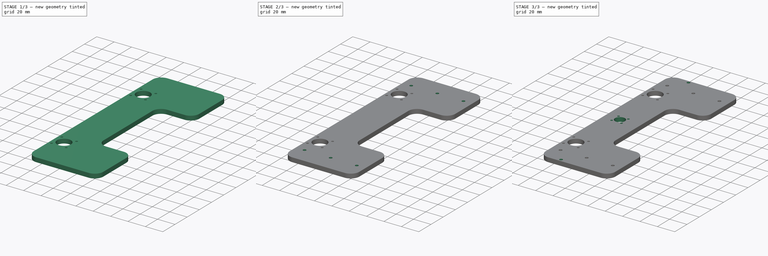
[diagram: build sequence overview — one tinted view per stage of 3, left to right]
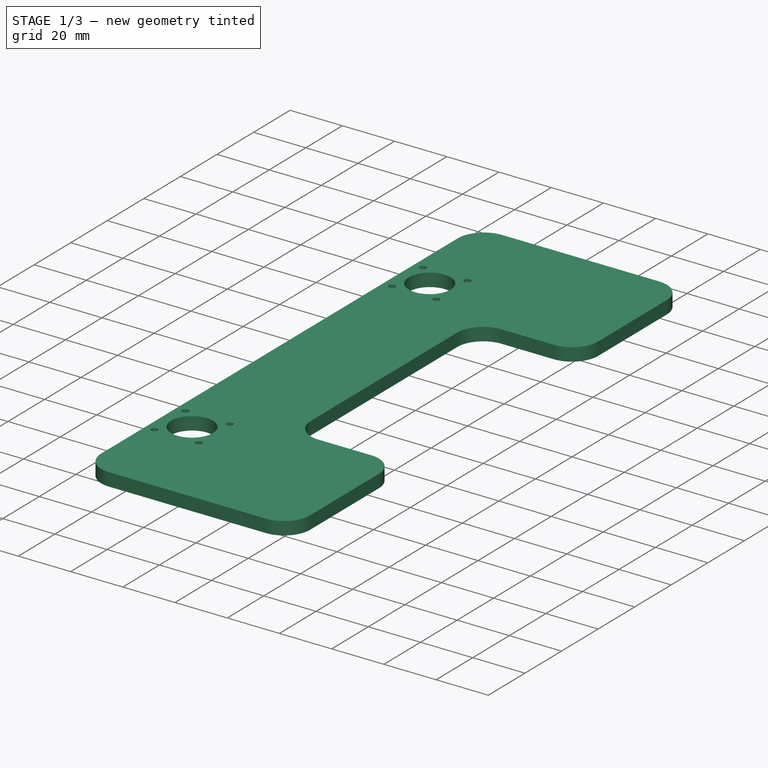
[diagram: stage 1 of 3 — iso view after this stage's code; geometry added in this stage tinted green]
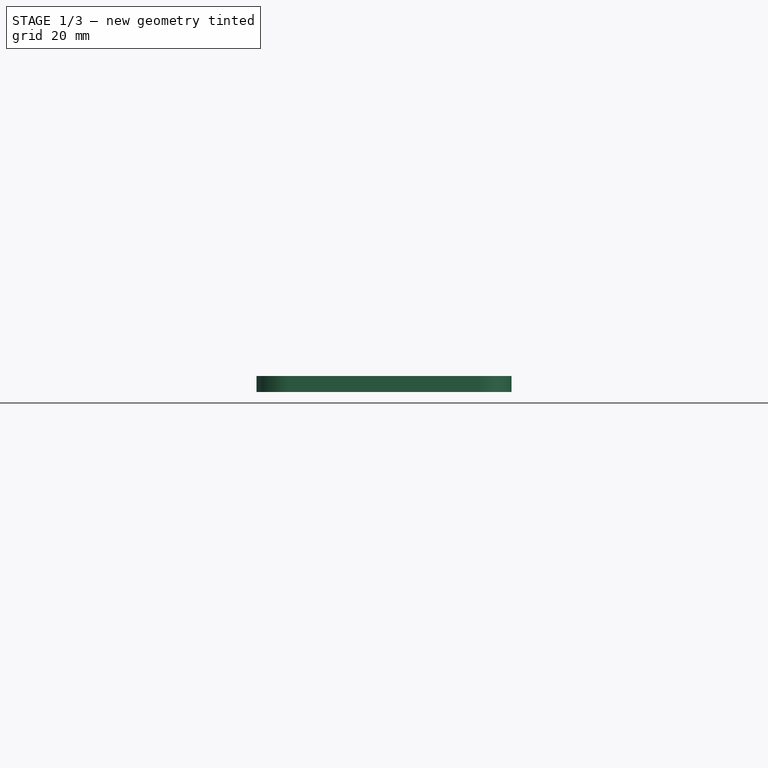
[diagram: stage 1 of 3 — front view after this stage's code; geometry added in this stage tinted green]
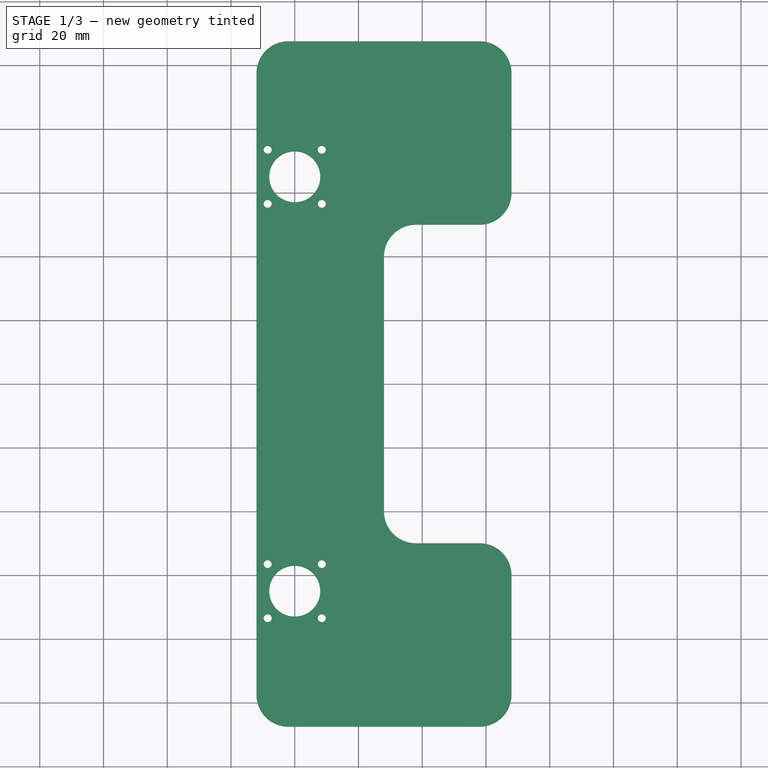
[diagram: stage 1 of 3 — top view after this stage's code; geometry added in this stage tinted green]
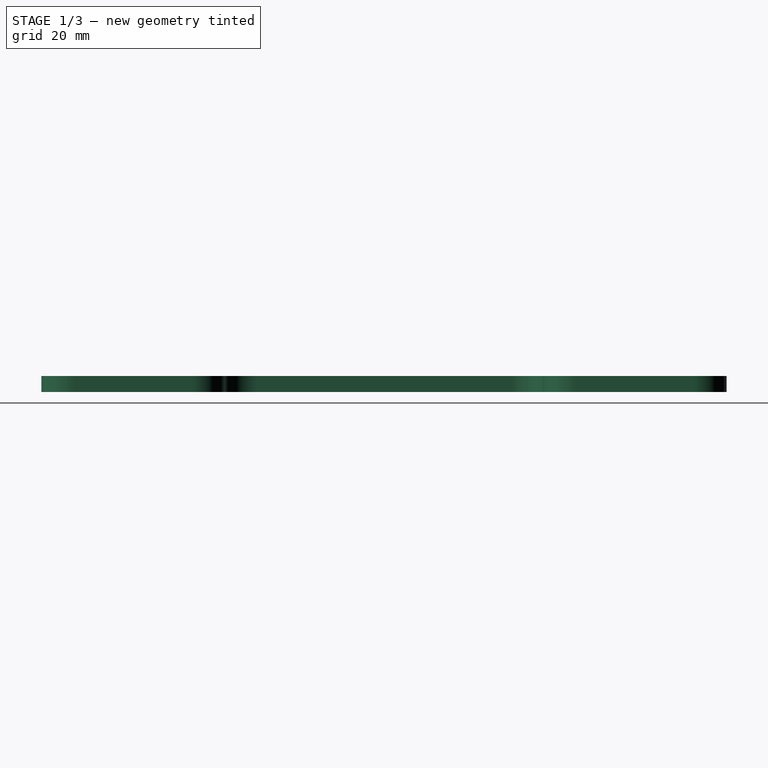
[diagram: stage 1 of 3 — right view after this stage's code; geometry added in this stage tinted green]
FCSTD DOCUMENT  (FreeCAD 0.18R16117 (Git))
Label: ZSupport
License: All rights reserved
LicenseURL: http://en.wikipedia.org/wiki/All_rights_reserved
objects: Sketcher::SketchObject×6, PartDesign::Pocket×4, PartDesign::Mirrored×3, PartDesign::ShapeBinder×1, PartDesign::Pad×1, PartDesign::Body×1
note: 21 computed .brp shape members not serialized (recipe doc carries the construction recipe); baked Part::Feature solids carry a one-line shape summary decoded from their .brp

FEATURE [Sketcher::SketchObject] Sketch  label="Dimensions"
  sketch-geometry (18):
    g0: LineSegment StartX=-25 StartY=-160 StartZ=0 EndX=295 EndY=-160 EndZ=0
    g1: LineSegment StartX=295 StartY=-160 StartZ=0 EndX=295 EndY=160 EndZ=0
    g2: LineSegment StartX=295 StartY=160 StartZ=0 EndX=-25 EndY=160 EndZ=0
    g3: LineSegment StartX=-25 StartY=160 StartZ=0 EndX=-25 EndY=-160 EndZ=0
    g4: LineSegment StartX=-25 StartY=0 StartZ=0 EndX=295 EndY=0 EndZ=0
    g5: LineSegment StartX=5 StartY=-160 StartZ=0 EndX=5 EndY=-130 EndZ=0
    g6: LineSegment StartX=5 StartY=-130 StartZ=0 EndX=-25 EndY=-130 EndZ=0
    g7: LineSegment StartX=5 StartY=160 StartZ=0 EndX=5 EndY=130 EndZ=0
    g8: LineSegment StartX=5 StartY=130 StartZ=0 EndX=-25 EndY=130 EndZ=0
    g9: ArcOfCircle CenterX=5 CenterY=130 CenterZ=0 NormalX=0 NormalY=0 NormalZ=1 AngleXU=0 Radius=30 StartAngle=1.5708 EndAngle=3.14159
    g10: ArcOfCircle CenterX=5 CenterY=-130 CenterZ=0 NormalX=0 NormalY=0 NormalZ=1 AngleXU=0 Radius=30 StartAngle=3.14159 EndAngle=4.71239
    g11: LineSegment StartX=-20 StartY=130 StartZ=0 EndX=-20 EndY=-130 EndZ=0
    g12: LineSegment StartX=0 StartY=130 StartZ=0 EndX=0 EndY=-130 EndZ=0
    g13: LineSegment StartX=135 StartY=160 StartZ=0 EndX=135 EndY=-160 EndZ=0
    g14: LineSegment StartX=28 StartY=107 StartZ=0 EndX=242 EndY=107 EndZ=0
    g15: LineSegment StartX=242 StartY=107 StartZ=0 EndX=242 EndY=-107 EndZ=0
    g16: LineSegment StartX=242 StartY=-107 StartZ=0 EndX=28 EndY=-107 EndZ=0
    g17: LineSegment StartX=28 StartY=-107 StartZ=0 EndX=28 EndY=107 EndZ=0
  constraints (54):
    c: Horizontal(g0)
    c: Coincident(g0,g1)
    c: Vertical(g1)
    c: Coincident(g1,g2)
    c: Horizontal(g2)
    c: Coincident(g2,g3)
    c: Coincident(g3,g0)
    c: Vertical(g3)
    c: DistanceY(g3,g3) = 320
    c: Distance(g0) = 320
    c: PointOnObject(g4,g1)
    c: Horizontal(g4)
    c: Symmetric(g2,g0,g4)
    c: Coincident(g5,g6)
    c: Horizontal(g6)
    c: Vertical(g5)
    c: Distance(g5) = 30
    c: Coincident(g7,g8)
    c: Horizontal(g8)
    c: Vertical(g7)
    c: Distance(g7) = 30
    c: PointOnObject(g7,g2)
    c: PointOnObject(g8,g3)
    c: PointOnObject(g6,g3)
    c: PointOnObject(g5,g0)
    c: Coincident(g9,g7)
    c: Coincident(g9,g8)
    c: Coincident(g9,g7)
    c: Coincident(g10,g5)
    c: Coincident(g10,g6)
    c: Coincident(g10,g5)
    c: PointOnObject(g11,g8)
    c: PointOnObject(g11,g6)
    c: Vertical(g11)
    c: DistanceX(g6,g11) = 5
    c: PointOnObject(g12,g8)
    c: PointOnObject(g12,g6)
    c: Vertical(g12)
    c: PointOnObject(g13,g2)
    c: Vertical(g13)
    c: Symmetric(g0,g0,g13)
    c: DistanceX(g11,g12) = 20
    c: Coincident(g14,g15)
    c: Coincident(g15,g16)
    c: Coincident(g16,g17)
    c: Coincident(g17,g14)
    c: Horizontal(g14)
    c: Vertical(g15)
    c: DistanceX(g14,g14) = 214
    c: DistanceY(g15,g15) = 214
    c: Symmetric(g16,g15,g13)
    c: Symmetric(g14,g16,g4)
    c: PointOnObject(g4,g-1)
    c: PointOnObject(g12,g-2)
FEATURE [PartDesign::ShapeBinder] ShapeBinder
  Support = -> [Sketch]
  TraceSupport = false
FEATURE [Sketcher::SketchObject] Sketch001  label="ZSupportSketch"
  ExternalGeometry = -> [ShapeBinder]
  MapMode = 5
  Support = -> [XY_Plane]
  sketch-geometry (16):
    g0: LineSegment StartX=88 StartY=-97.5 StartZ=0 EndX=88 EndY=-60 EndZ=0
    g1: ArcOfCircle CenterX=58 CenterY=-40 CenterZ=0 NormalX=0 NormalY=0 NormalZ=1 AngleXU=0 Radius=10 StartAngle=3.14159 EndAngle=4.71239
    g2: LineSegment StartX=48 StartY=-40 StartZ=0 EndX=48 EndY=40 EndZ=0
    g3: LineSegment StartX=88 StartY=97.5 StartZ=0 EndX=88 EndY=60 EndZ=0
    g4: ArcOfCircle CenterX=58 CenterY=40 CenterZ=0 NormalX=0 NormalY=0 NormalZ=1 AngleXU=0 Radius=10 StartAngle=1.5708 EndAngle=3.14159
    g5: ArcOfCircle CenterX=18 CenterY=-97.5 CenterZ=0 NormalX=0 NormalY=0 NormalZ=1 AngleXU=0 Radius=10 StartAngle=3.14159 EndAngle=4.71239
    g6: ArcOfCircle CenterX=18 CenterY=97.5 CenterZ=0 NormalX=0 NormalY=0 NormalZ=1 AngleXU=0 Radius=10 StartAngle=1.5708 EndAngle=3.14159
    g7: LineSegment StartX=8 StartY=97.5 StartZ=0 EndX=8 EndY=-97.5 EndZ=0
    g8: LineSegment StartX=18 StartY=-107.5 StartZ=0 EndX=78 EndY=-107.5 EndZ=0
    g9: ArcOfCircle CenterX=78 CenterY=-97.5 CenterZ=0 NormalX=0 NormalY=0 NormalZ=1 AngleXU=0 Radius=10 StartAngle=4.71239 EndAngle=6.28319
    g10: LineSegment StartX=18 StartY=107.5 StartZ=0 EndX=78 EndY=107.5 EndZ=0
    g11: ArcOfCircle CenterX=78 CenterY=97.5 CenterZ=0 NormalX=0 NormalY=0 NormalZ=1 AngleXU=0 Radius=10 StartAngle=3e-16 EndAngle=1.5708
    g12: LineSegment StartX=58 StartY=-50 StartZ=0 EndX=78 EndY=-50 EndZ=0
    g13: ArcOfCircle CenterX=78 CenterY=-60 CenterZ=0 NormalX=0 NormalY=0 NormalZ=1 AngleXU=0 Radius=10 StartAngle=0 EndAngle=1.5708
    g14: ArcOfCircle CenterX=78 CenterY=60 CenterZ=0 NormalX=0 NormalY=0 NormalZ=1 AngleXU=0 Radius=10 StartAngle=4.71239 EndAngle=6.28319
    g15: LineSegment StartX=58 StartY=50 StartZ=0 EndX=78 EndY=50 EndZ=0
  constraints (38):
    c: Tangent(g1,g2) = 1.5708
    c: Vertical(g0)
    c: Symmetric(g1,g2,g-3)
    c: Symmetric(g3,g0,g-3)
    c: Symmetric(g3,g0,g-3)
    c: Radius(g1) = 10
    c: Radius(g4) = 10
    c: Coincident(g7,g6)
    c: Vertical(g7)
    c: Tangent(g6,g7,g6) = -1.5708
    c: Tangent(g7,g5) = -1.5708
    c: DistanceX(g5,g0) = 80
    c: DistanceX(g-4,g5) = 3
    c: Radius(g5) = 10
    c: Tangent(g5,g8) = -1.5708
    c: Tangent(g8,g9) = -1.5708
    c: Radius(g9) = 10
    c: Tangent(g9,g0) = -1.5708
    c: Horizontal(g8)
    c: Tangent(g6,g10) = 1.5708
    c: Tangent(g10,g11) = 1.5708
    c: Horizontal(g10)
    c: Tangent(g11,g3) = 1.5708
    c: Radius(g11) = 10
    c: DistanceY(g5,g6) = 215
    c: Radius(g6) = 10
    c: DistanceX(g6,g2) = 40
    c: DistanceY(g1,g-3) = 50
    c: Horizontal(g12)
    c: Tangent(g13,g12) = 1.5708
    c: Tangent(g13,g0) = -1.5708
    c: Radius(g13) = 10
    c: Tangent(g12,g1) = -1.5708
    c: Tangent(g14,g3) = 1.5708
    c: Tangent(g4,g2) = 1.5708
    c: Tangent(g15,g4) = 1.5708
    c: Tangent(g15,g14) = -1.5708
    c: Radius(g14) = 10
FEATURE [PartDesign::Pad] Pad  label="ZSupportPad"
  Length = 5
  Length2 = 100
  Profile = -> Sketch001
  Type = 0
FEATURE [Sketcher::SketchObject] Sketch002  label="ZSupportFlangeMount"
  ExternalGeometry = -> [ShapeBinder]
  MapMode = 5
  Support = -> [XY_Plane]
  sketch-geometry (13):
    g0: Circle CenterX=20 CenterY=-65 CenterZ=0 NormalX=0 NormalY=0 NormalZ=1 AngleXU=0 Radius=8
    g1: Circle [constr] CenterX=20 CenterY=-65 CenterZ=0 NormalX=0 NormalY=0 NormalZ=1 AngleXU=0 Radius=12
    g2: Circle CenterX=11.5147 CenterY=-56.5147 CenterZ=0 NormalX=0 NormalY=0 NormalZ=1 AngleXU=0 Radius=1.25
    g3: Circle CenterX=11.5147 CenterY=-73.4853 CenterZ=0 NormalX=0 NormalY=0 NormalZ=1 AngleXU=0 Radius=1.25
    g4: Circle CenterX=28.4853 CenterY=-73.4853 CenterZ=0 NormalX=0 NormalY=0 NormalZ=1 AngleXU=0 Radius=1.25
    g5: Circle CenterX=28.4853 CenterY=-56.5147 CenterZ=0 NormalX=0 NormalY=0 NormalZ=1 AngleXU=0 Radius=1.25
    g6: LineSegment [constr] StartX=7.5 StartY=-52.5 StartZ=0 EndX=32.5 EndY=-52.5 EndZ=0
    g7: LineSegment [constr] StartX=32.5 StartY=-52.5 StartZ=0 EndX=32.5 EndY=-77.5 EndZ=0
    g8: LineSegment [constr] StartX=32.5 StartY=-77.5 StartZ=0 EndX=7.5 EndY=-77.5 EndZ=0
    g9: LineSegment [constr] StartX=7.5 StartY=-77.5 StartZ=0 EndX=7.5 EndY=-52.5 EndZ=0
    g10: LineSegment [constr] StartX=7.5 StartY=-52.5 StartZ=0 EndX=32.5 EndY=-77.5 EndZ=0
    g11: LineSegment [constr] StartX=32.5 StartY=-52.5 StartZ=0 EndX=7.5 EndY=-77.5 EndZ=0
    g12: LineSegment [constr] StartX=-25 StartY=0 StartZ=0 EndX=295 EndY=0 EndZ=0
  constraints (35):
    c: DistanceX(g-4,g0) = 20
    c: Diameter(g0) = 16
    c: Coincident(g1,g0)
    c: Diameter(g1) = 24
    c: Diameter(g5) = 2.5
    c: Equal(g5,g4)
    c: Equal(g5,g2)
    c: Equal(g5,g3)
    c: Horizontal(g2,g5)
    c: Coincident(g6,g7)
    c: Coincident(g7,g8)
    c: Coincident(g8,g9)
    c: Coincident(g9,g6)
    c: Horizontal(g6)
    c: Horizontal(g8)
    c: Vertical(g7)
    c: Vertical(g9)
    c: Coincident(g10,g6)
    c: Coincident(g10,g7)
    c: Coincident(g11,g6)
    c: Coincident(g11,g8)
    c: DistanceX(g6,g6) = 25
    c: DistanceY(g7,g7) = 25
    c: Coincident(g12,g-5)
    c: Coincident(g12,g-5)
    c: DistanceY(g0,g12) = 65
    c: PointOnObject(g0,g11)
    c: PointOnObject(g0,g10)
    c: PointOnObject(g2,g10)
    c: PointOnObject(g2,g1)
    c: PointOnObject(g3,g1)
    c: PointOnObject(g4,g1)
    c: PointOnObject(g5,g1)
    c: Vertical(g5,g4)
    c: Horizontal(g3,g4)
FEATURE [Sketcher::SketchObject] Sketch003  label="ZSupportHeatBedMount"
  ExternalGeometry = -> [ShapeBinder]
  MapMode = 5
  Support = -> [XY_Plane]
  sketch-geometry (2):
    g0: Circle CenterX=30.5 CenterY=-104.5 CenterZ=0 NormalX=0 NormalY=0 NormalZ=1 AngleXU=0 Radius=1.75
    g1: LineSegment [constr] StartX=-25 StartY=0 StartZ=0 EndX=295 EndY=0 EndZ=0
  constraints (5):
    c: Diameter(g0) = 3.5
    c: DistanceX(g0,g-4) = 104.5
    c: DistanceY(g0,g-3) = 104.5
    c: Coincident(g1,g-3)
    c: Coincident(g1,g-3)
FEATURE [PartDesign::Pocket] Pocket  label="ZSupportFlangeMountPocket"
  BaseFeature = -> Pad
  Length = 5
  Length2 = 100
  Midplane = true
  Profile = -> Sketch002
  Type = 1
FEATURE [PartDesign::Mirrored] Mirrored  label="ZSupportFlangeMountPocketMirrored"
  BaseFeature = -> Pocket
  MirrorPlane = -> Sketch002 [Axis6]
  Originals = -> [Pocket]
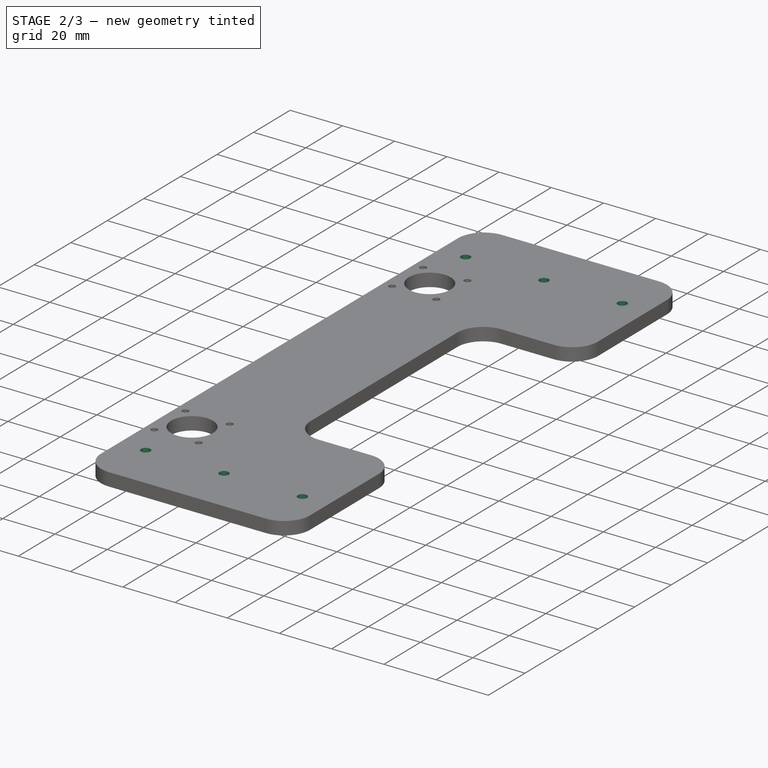
[diagram: stage 2 of 3 — iso view after this stage's code; geometry added in this stage tinted green]
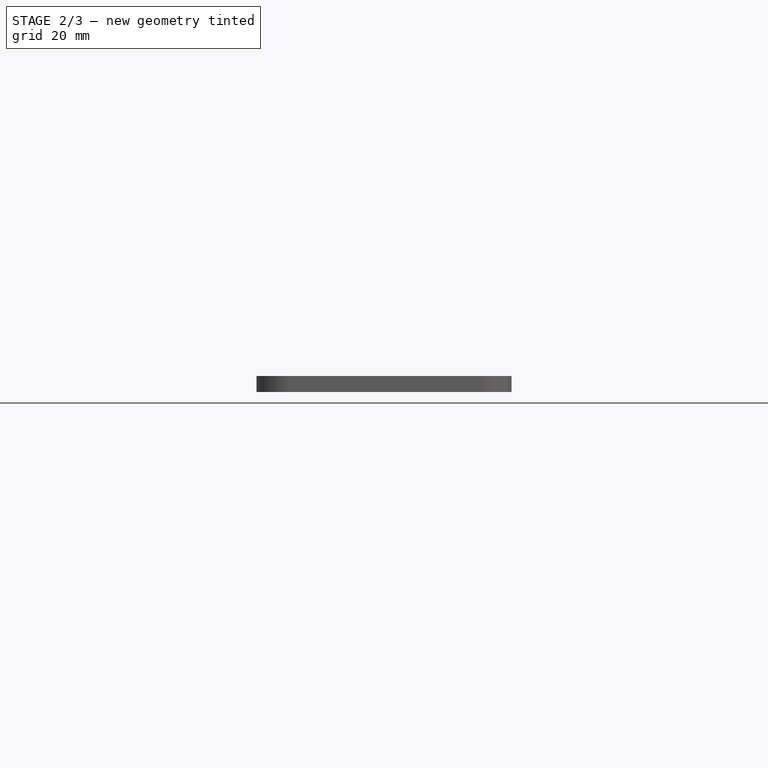
[diagram: stage 2 of 3 — front view after this stage's code; geometry added in this stage tinted green]
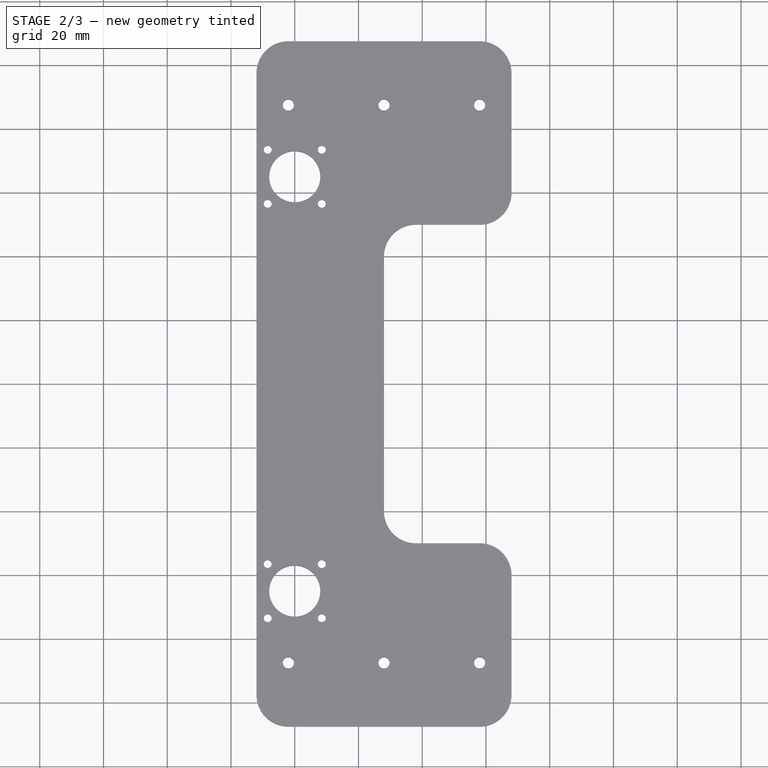
[diagram: stage 2 of 3 — top view after this stage's code; geometry added in this stage tinted green]
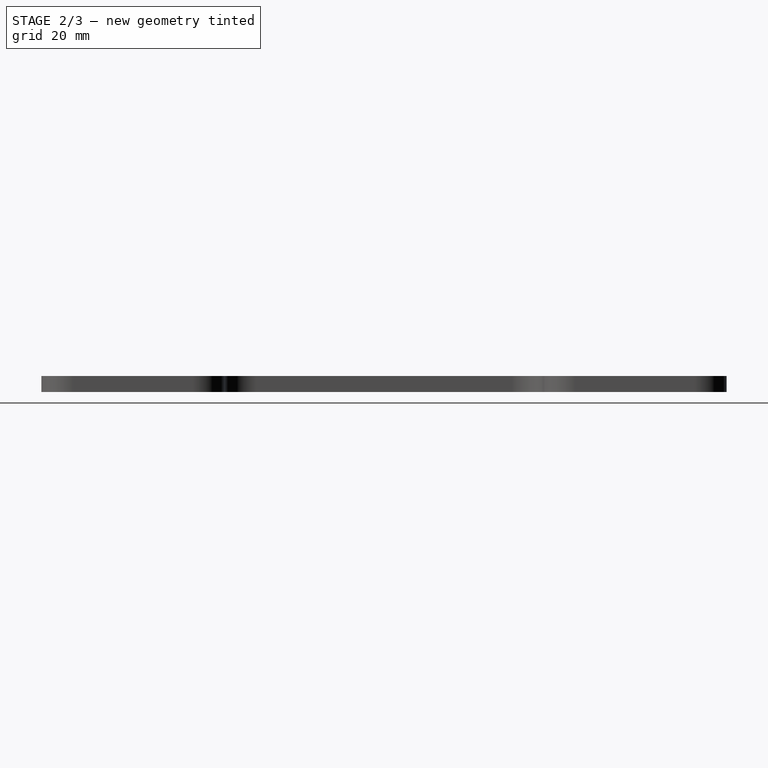
[diagram: stage 2 of 3 — right view after this stage's code; geometry added in this stage tinted green]
FEATURE [Sketcher::SketchObject] Sketch004  label="ZSupport2020Mount"
  ExternalGeometry = -> [ShapeBinder,Mirrored]
  MapMode = 5
  Support = -> [XY_Plane]
  sketch-geometry (4):
    g0: Circle CenterX=78 CenterY=-87.5 CenterZ=0 NormalX=0 NormalY=0 NormalZ=1 AngleXU=0 Radius=1.75
    g1: Circle CenterX=48 CenterY=-87.5 CenterZ=0 NormalX=0 NormalY=0 NormalZ=1 AngleXU=0 Radius=1.75
    g2: Circle CenterX=18 CenterY=-87.5 CenterZ=0 NormalX=0 NormalY=0 NormalZ=1 AngleXU=0 Radius=1.75
    g3: LineSegment [constr] StartX=-25 StartY=0 StartZ=0 EndX=295 EndY=0 EndZ=0
  constraints (10):
    c: Diameter(g0) = 3.5
    c: Equal(g0,g1)
    c: Equal(g0,g2)
    c: Symmetric(g0,g2,g1)
    c: Horizontal(g2,g1)
    c: DistanceY(g0,g3) = 87.5
    c: Coincident(g3,g-3)
    c: Coincident(g3,g-3)
    c: Vertical(g-5,g2)
    c: Vertical(g0,g-5)
FEATURE [PartDesign::Pocket] Pocket001  label="ZSupport2020MountPocket"
  BaseFeature = -> Mirrored
  Length = 5
  Length2 = 100
  Midplane = true
  Profile = -> Sketch004
  Type = 1
FEATURE [PartDesign::Mirrored] Mirrored001  label="ZSupport2020MountPocketMirrored"
  BaseFeature = -> Pocket001
  MirrorPlane = -> Sketch004 [Axis0]
  Originals = -> [Pocket001]
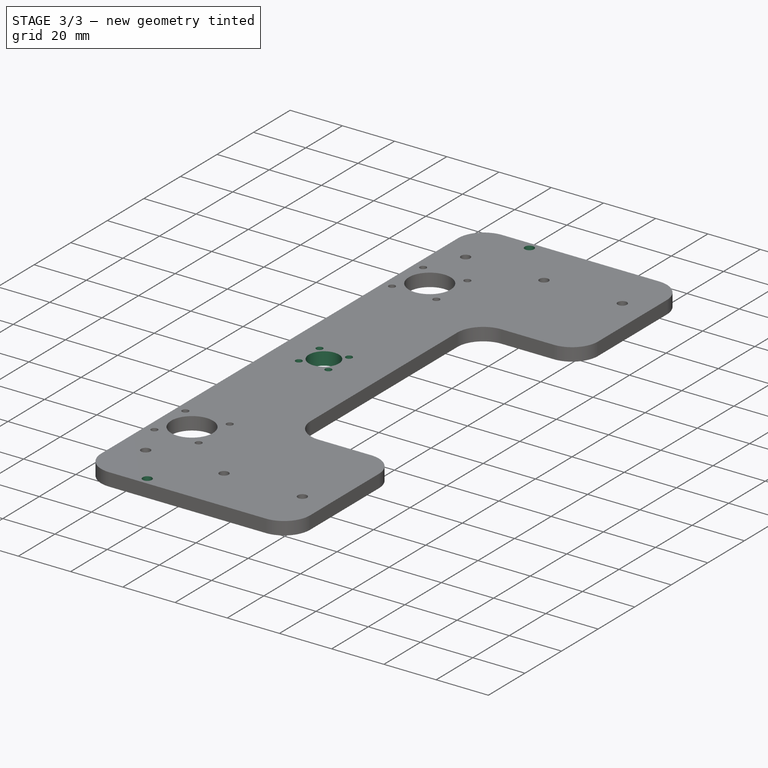
[diagram: stage 3 of 3 — iso view after this stage's code; geometry added in this stage tinted green]
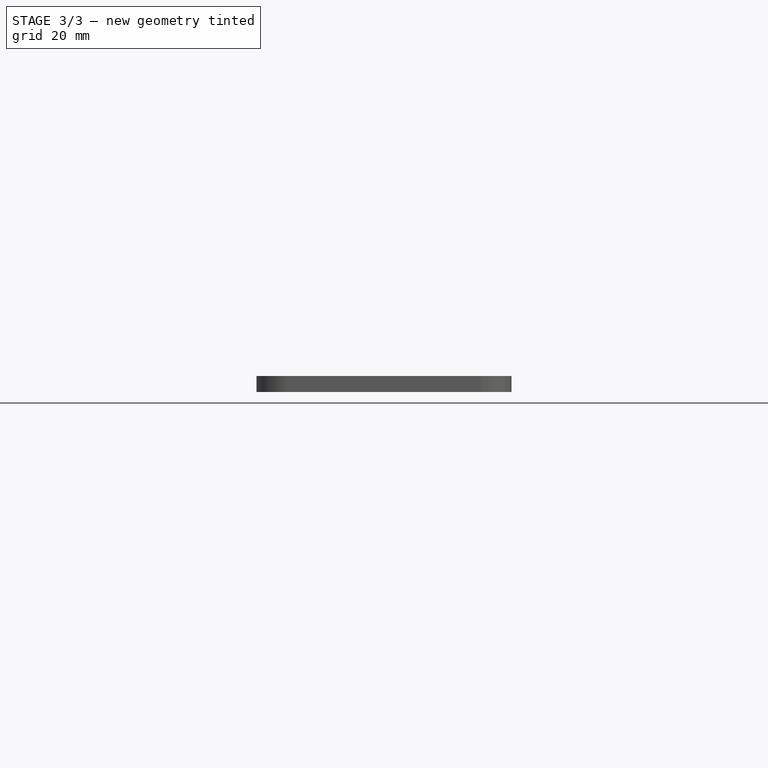
[diagram: stage 3 of 3 — front view after this stage's code; geometry added in this stage tinted green]
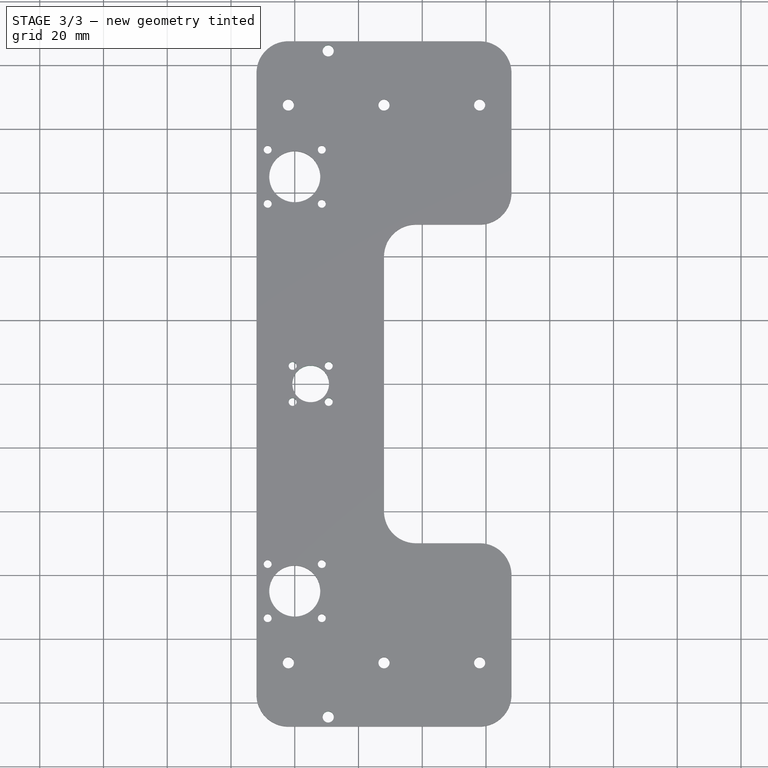
[diagram: stage 3 of 3 — top view after this stage's code; geometry added in this stage tinted green]
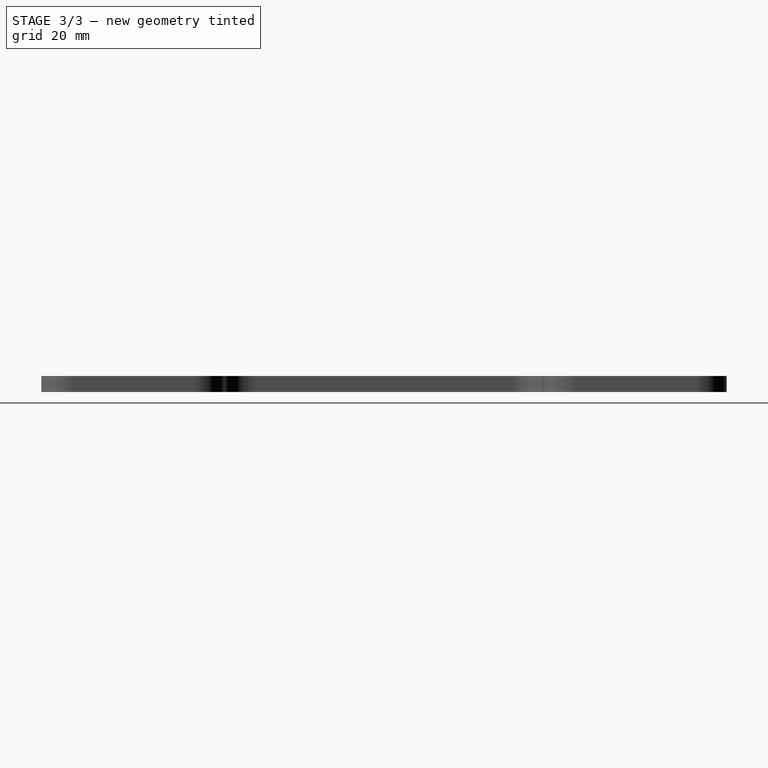
[diagram: stage 3 of 3 — right view after this stage's code; geometry added in this stage tinted green]
FEATURE [PartDesign::Pocket] Pocket002  label="ZSupportHeatBedMountPocket"
  BaseFeature = -> Mirrored001
  Length = 5
  Length2 = 100
  Midplane = true
  Profile = -> Sketch003
  Type = 1
FEATURE [PartDesign::Mirrored] Mirrored002  label="ZSupportHeatBedMountPocketMirrored"
  BaseFeature = -> Pocket002
  MirrorPlane = -> Sketch003 [Axis0]
  Originals = -> [Pocket002]
FEATURE [Sketcher::SketchObject] Sketch005  label="ZSupportLeadScrewNutMount"
  ExternalGeometry = -> [ShapeBinder]
  MapMode = 5
  Support = -> [XY_Plane]
  sketch-geometry (13):
    g0: Circle CenterX=25 CenterY=-2.1e-15 CenterZ=0 NormalX=0 NormalY=0 NormalZ=1 AngleXU=0 Radius=5.75
    g1: Circle [constr] CenterX=25 CenterY=-2.1e-15 CenterZ=0 NormalX=0 NormalY=0 NormalZ=1 AngleXU=0 Radius=8
    g2: Circle CenterX=30.6569 CenterY=-5.65685 CenterZ=0 NormalX=0 NormalY=0 NormalZ=1 AngleXU=0 Radius=1.25
    g3: Circle CenterX=30.6569 CenterY=5.65685 CenterZ=0 NormalX=0 NormalY=0 NormalZ=1 AngleXU=0 Radius=1.25
    g4: Circle CenterX=19.3431 CenterY=5.65685 CenterZ=0 NormalX=0 NormalY=0 NormalZ=1 AngleXU=0 Radius=1.25
    g5: Circle CenterX=19.3431 CenterY=-5.65685 CenterZ=0 NormalX=0 NormalY=0 NormalZ=1 AngleXU=0 Radius=1.25
    g6: LineSegment [constr] StartX=12.5 StartY=12.5 StartZ=0 EndX=37.5 EndY=12.5 EndZ=0
    g7: LineSegment [constr] StartX=37.5 StartY=12.5 StartZ=0 EndX=37.5 EndY=-12.5 EndZ=0
    g8: LineSegment [constr] StartX=37.5 StartY=-12.5 StartZ=0 EndX=12.5 EndY=-12.5 EndZ=0
    g9: LineSegment [constr] StartX=12.5 StartY=-12.5 StartZ=0 EndX=12.5 EndY=12.5 EndZ=0
    g10: LineSegment [constr] StartX=12.5 StartY=12.5 StartZ=0 EndX=37.5 EndY=-12.5 EndZ=0
    g11: LineSegment [constr] StartX=37.5 StartY=12.5 StartZ=0 EndX=12.5 EndY=-12.5 EndZ=0
    g12: LineSegment [constr] StartX=-25 StartY=0 StartZ=0 EndX=295 EndY=0 EndZ=0
  constraints (34):
    c: DistanceX(g-4,g0) = 25
    c: Diameter(g0) = 11.5
    c: Coincident(g1,g0)
    c: Diameter(g1) = 16
    c: Diameter(g5) = 2.5
    c: Equal(g5,g4)
    c: Equal(g5,g2)
    c: Equal(g5,g3)
    c: Horizontal(g2,g5)
    c: Coincident(g6,g7)
    c: Coincident(g7,g8)
    c: Coincident(g8,g9)
    c: Coincident(g9,g6)
    c: Horizontal(g6)
    c: Horizontal(g8)
    c: Vertical(g7)
    c: Coincident(g10,g6)
    c: Coincident(g10,g7)
    c: Coincident(g11,g6)
    c: Coincident(g11,g8)
    c: DistanceX(g6,g6) = 25
    c: DistanceY(g7,g7) = 25
    c: Vertical(g3,g2)
    c: Coincident(g12,g-5)
    c: Coincident(g12,g-5)
    c: Symmetric(g6,g8,g12)
    c: Horizontal(g3,g4)
    c: Vertical(g4,g5)
    c: PointOnObject(g4,g10)
    c: PointOnObject(g0,g10)
    c: PointOnObject(g0,g11)
    c: PointOnObject(g4,g1)
    c: PointOnObject(g3,g1)
    c: PointOnObject(g5,g1)
FEATURE [PartDesign::Pocket] Pocket003  label="ZSupportLeadScrewNutMountPocket"
  BaseFeature = -> Mirrored002
  Length = 5
  Length2 = 100
  Midplane = true
  Profile = -> Sketch005
  Type = 1
FEATURE [PartDesign::Body] Body  label="ZSupport"
  Group = -> [Sketch001,ShapeBinder,Pad,Sketch002,Sketch003,Sketch004,Pocket,Mirrored,Pocket001,Mirrored001,Pocket002,Mirrored002,Sketch005,Pocket003]
  Origin = -> Origin
  Tip = -> Pocket003
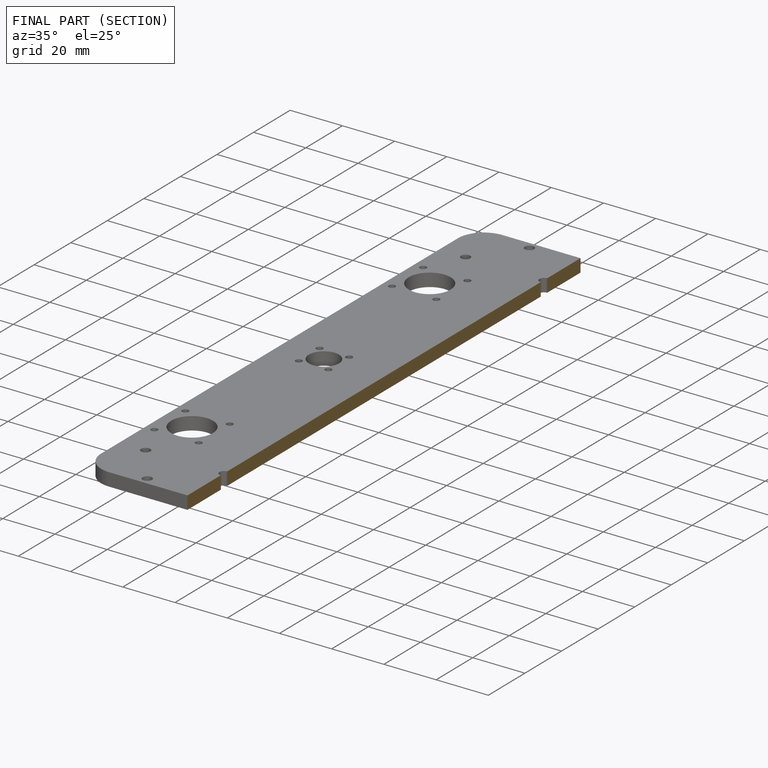
[diagram: finished part — half-section view (interior)]
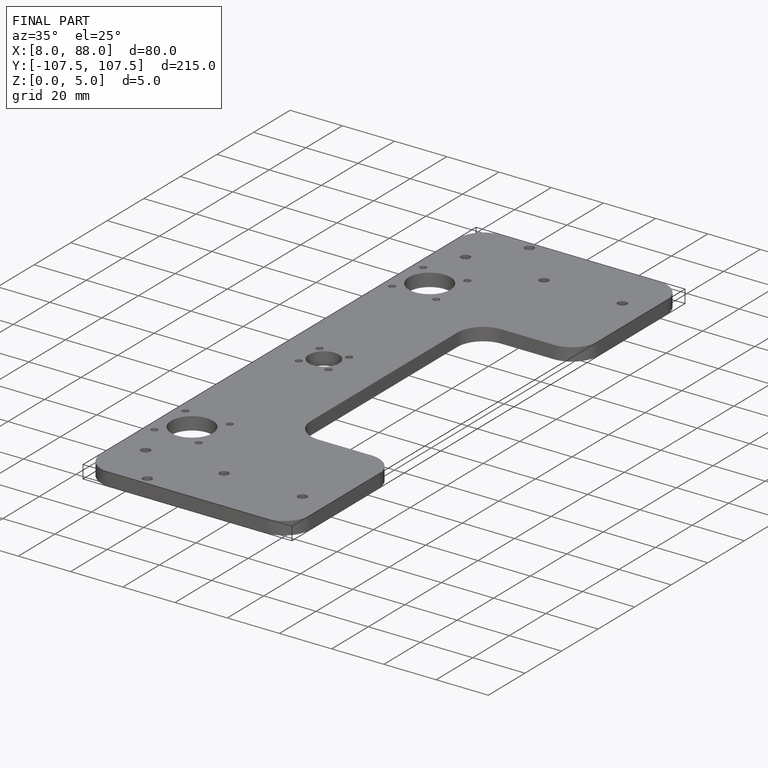
[diagram: finished part — iso view with bounding-box wireframe]
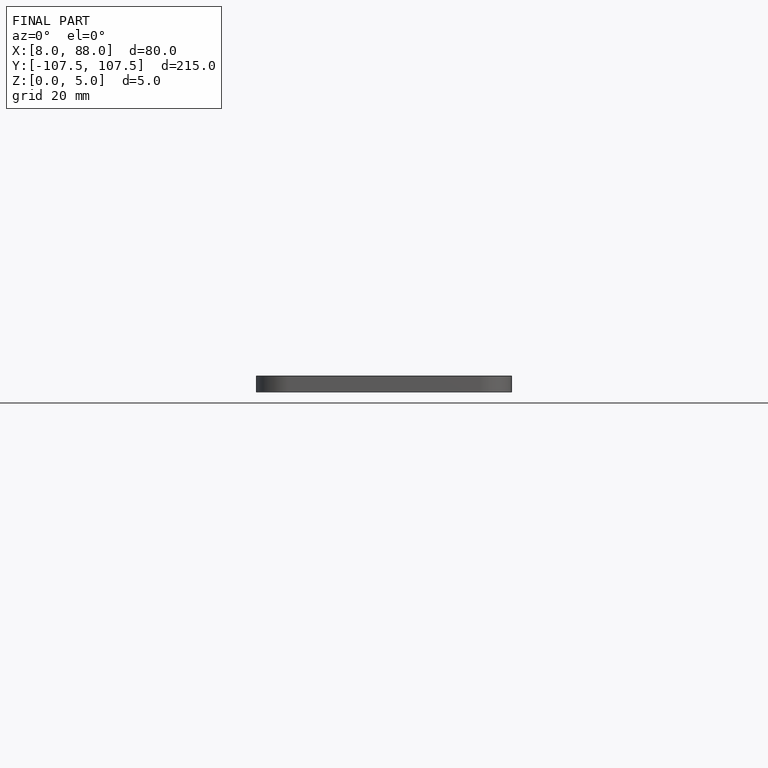
[diagram: finished part — front view with bounding-box wireframe]
